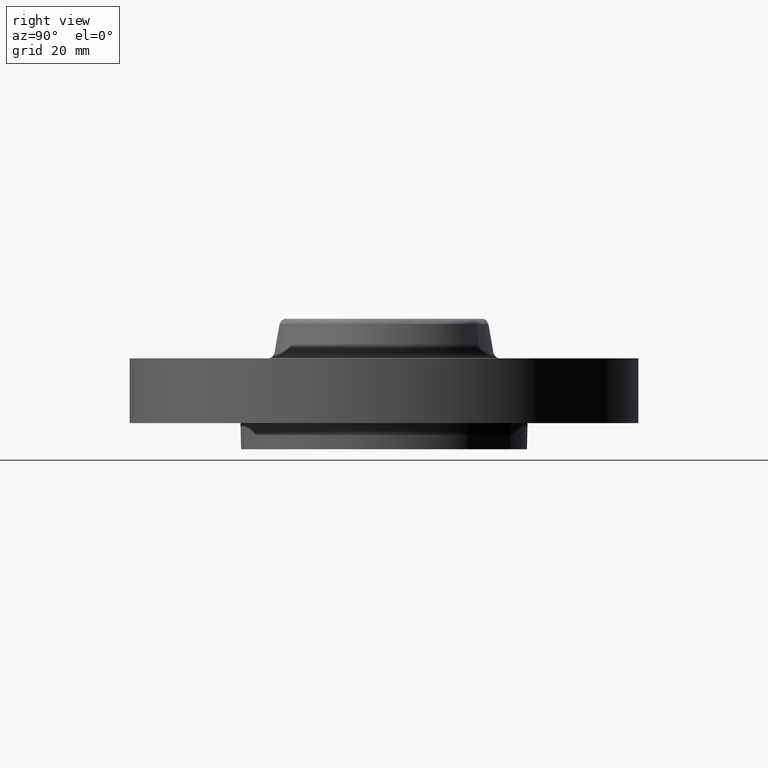
[diagram: clean part render]
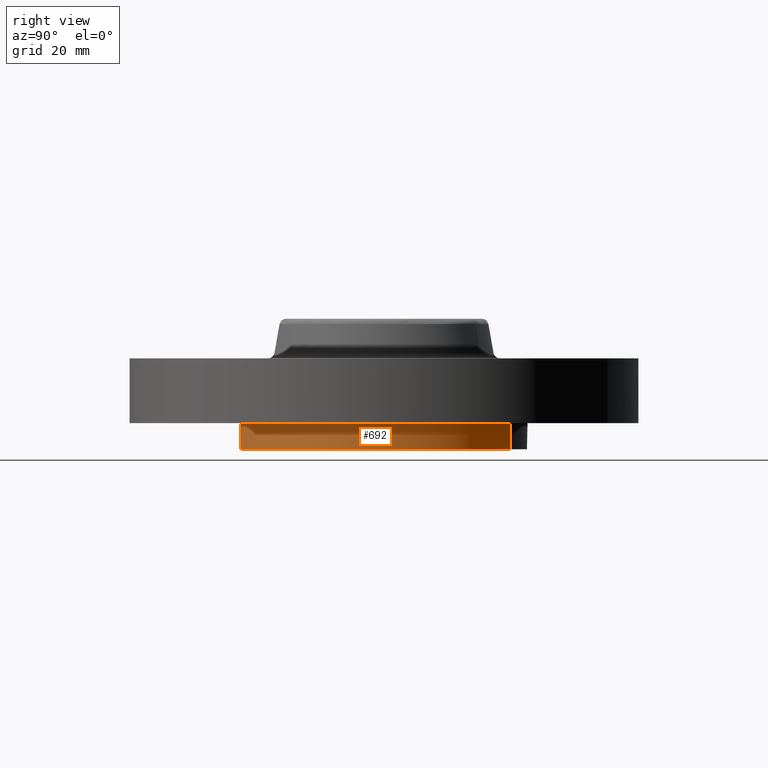
[diagram: same view with one face highlighted and labeled with its STEP entity id]
A machine part, right view. The second image highlights one B-rep face of the part: STEP entity #692.
In plain terms, the highlighted cylindrical surface (partial cylindrical patch) has radius 34.925 mm, axis along (0, 0, -1).
Its self-contained STEP definition (entity closure, byte-faithful):
#340=AXIS2_PLACEMENT_3D('Circle Axis2P3D',#338,#339,$) ;
#595=AXIS2_PLACEMENT_3D('Circle Axis2P3D',#593,#594,$) ;
#600=AXIS2_PLACEMENT_3D('Circle Axis2P3D',#598,#599,$) ;
#645=AXIS2_PLACEMENT_3D('Circle Axis2P3D',#643,#644,$) ;
#672=AXIS2_PLACEMENT_3D('Cylinder Axis2P3D',#669,#670,#671) ;
#338=CARTESIAN_POINT('Axis2P3D Location',(0.,0.,-0.250000000001)) ;
#342=CARTESIAN_POINT('Vertex',(0.659210115583,1.2066760226,-0.250000000001)) ;
#344=CARTESIAN_POINT('Vertex',(-0.659210115583,-1.2066760226,-0.250000000001)) ;
#393=CARTESIAN_POINT('Vertex',(2.02112938519E-016,-1.37500000001,0.)) ;
#523=CARTESIAN_POINT('Vertex',(1.37500000001,0.,0.)) ;
#593=CARTESIAN_POINT('Axis2P3D Location',(0.,0.,0.)) ;
#598=CARTESIAN_POINT('Axis2P3D Location',(0.,0.,0.)) ;
#602=CARTESIAN_POINT('Vertex',(0.659210115583,1.2066760226,0.)) ;
#640=CARTESIAN_POINT('Vertex',(-0.659210115583,-1.2066760226,0.)) ;
#643=CARTESIAN_POINT('Axis2P3D Location',(0.,0.,0.)) ;
#669=CARTESIAN_POINT('Axis2P3D Location',(0.,0.,0.375000000002)) ;
#674=CARTESIAN_POINT('Line Origine',(0.659210115583,1.2066760226,-0.125)) ;
#679=CARTESIAN_POINT('Line Origine',(-0.659210115583,-1.2066760226,-0.125)) ;
#339=DIRECTION('Axis2P3D Direction',(0.,0.,-0.0393700787402)) ;
#594=DIRECTION('Axis2P3D Direction',(0.,0.,-0.0393700787402)) ;
#599=DIRECTION('Axis2P3D Direction',(0.,0.,-0.0393700787402)) ;
#644=DIRECTION('Axis2P3D Direction',(0.,0.,-0.0393700787402)) ;
#670=DIRECTION('Axis2P3D Direction',(0.,0.,-0.0393700787402)) ;
#671=DIRECTION('Axis2P3D XDirection',(-0.0188750212049,-0.0345504945626,0.)) ;
#675=DIRECTION('Vector Direction',(0.,0.,-0.0393700787402)) ;
#680=DIRECTION('Vector Direction',(0.,0.,-0.0393700787402)) ;
#676=VECTOR('Line Direction',#675,0.0393700787402) ;
#681=VECTOR('Line Direction',#680,0.0393700787402) ;
#685=ORIENTED_EDGE('',*,*,#346,.F.) ;
#686=ORIENTED_EDGE('',*,*,#678,.T.) ;
#687=ORIENTED_EDGE('',*,*,#604,.T.) ;
#688=ORIENTED_EDGE('',*,*,#597,.T.) ;
#689=ORIENTED_EDGE('',*,*,#647,.T.) ;
#690=ORIENTED_EDGE('',*,*,#683,.F.) ;
#692=ADVANCED_FACE('PartBody',(#691),#673,.T.) ;
#341=CIRCLE('generated circle',#340,1.37500000001) ;
#596=CIRCLE('generated circle',#595,1.37500000001) ;
#601=CIRCLE('generated circle',#600,1.37500000001) ;
#646=CIRCLE('generated circle',#645,1.37500000001) ;
#673=CYLINDRICAL_SURFACE('generated cylinder',#672,1.37500000001) ;
#346=EDGE_CURVE('',#343,#345,#341,.T.) ;
#597=EDGE_CURVE('',#524,#394,#596,.T.) ;
#604=EDGE_CURVE('',#603,#524,#601,.T.) ;
#647=EDGE_CURVE('',#394,#641,#646,.T.) ;
#678=EDGE_CURVE('',#343,#603,#677,.F.) ;
#683=EDGE_CURVE('',#345,#641,#682,.F.) ;
#684=EDGE_LOOP('',(#685,#686,#687,#688,#689,#690)) ;
#691=FACE_OUTER_BOUND('',#684,.T.) ;
#677=LINE('Line',#674,#676) ;
#682=LINE('Line',#679,#681) ;
#343=VERTEX_POINT('',#342) ;
#345=VERTEX_POINT('',#344) ;
#394=VERTEX_POINT('',#393) ;
#524=VERTEX_POINT('',#523) ;
#603=VERTEX_POINT('',#602) ;
#641=VERTEX_POINT('',#640) ;